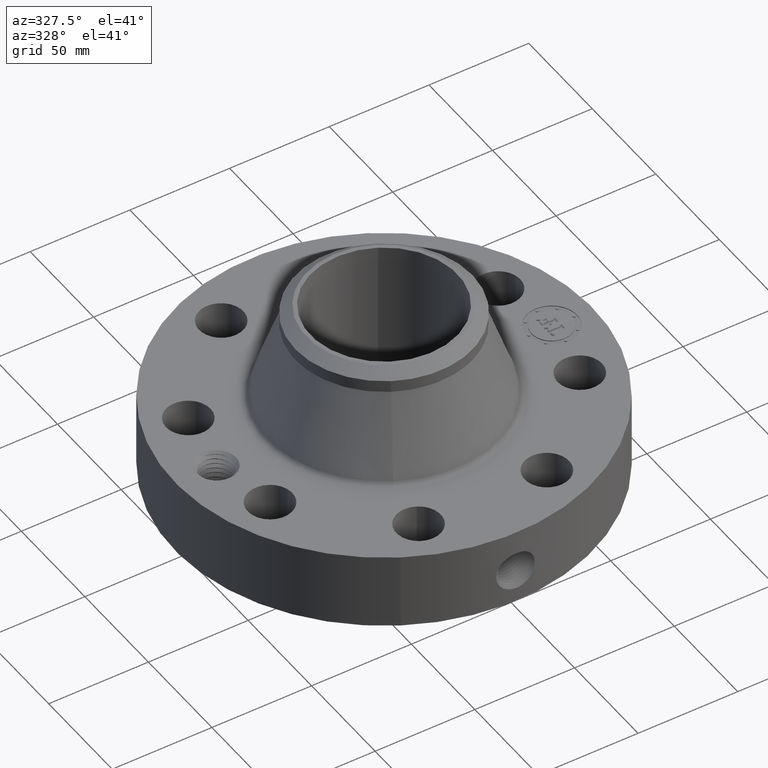
[diagram: clean part render]
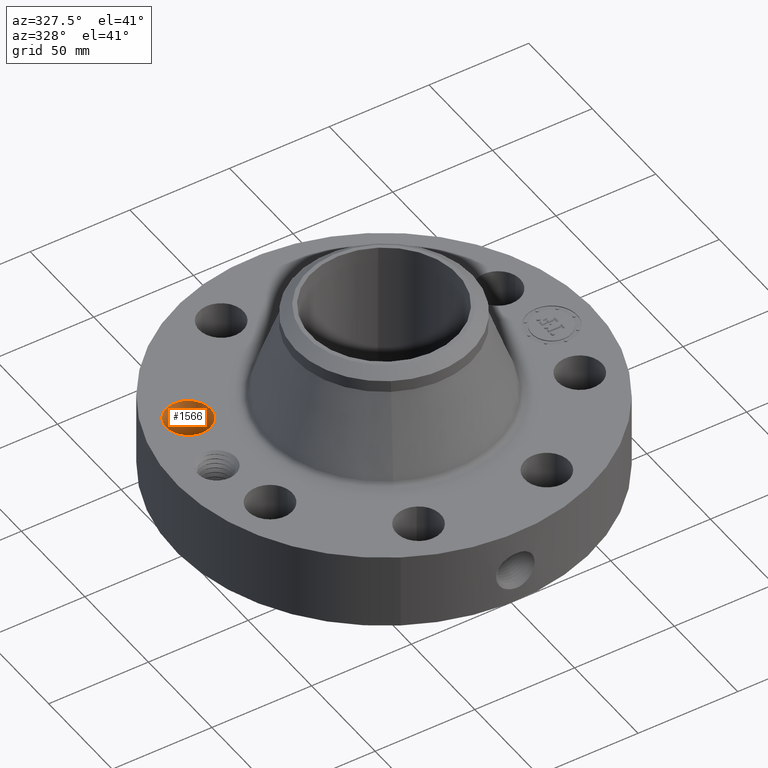
[diagram: same view with one face highlighted and labeled with its STEP entity id]
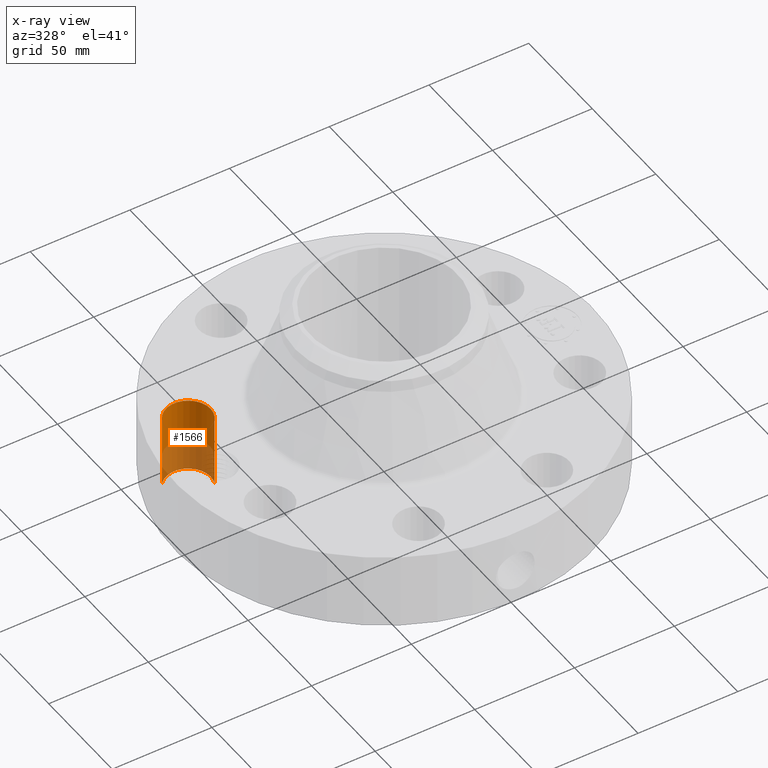
[diagram: x-ray of the same camera — body ghosted, the highlighted face saturated]
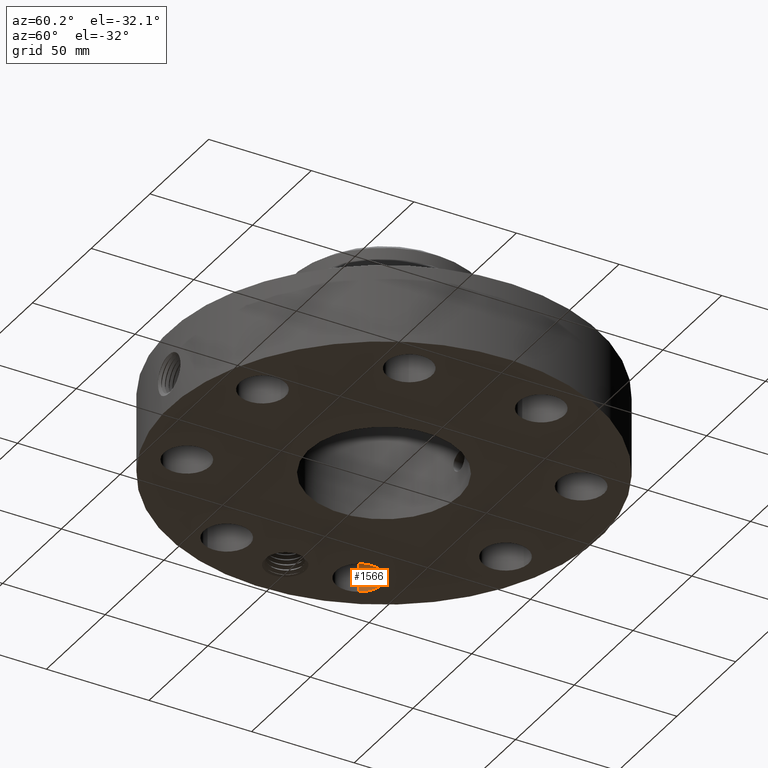
[diagram: same view with one face highlighted and labeled with its STEP entity id]
A machine part, auxiliary view. The second image highlights one B-rep face of the part: STEP entity #1566.
The next image is the same camera in x-ray: the body ghosted, the highlighted face saturated — about 43% of this face is hidden behind the body in this view.
A second angle (auxiliary view) of the same face is appended — the face is thin or edge-on in the first view.
In plain terms, the highlighted cylindrical surface (edge-blend (fillet) strip) has radius 11.176 mm, axis along (-0, 0, -1).
Its self-contained STEP definition (entity closure, byte-faithful):
#323=AXIS2_PLACEMENT_3D('Circle Axis2P3D',#321,#322,$) ;
#631=AXIS2_PLACEMENT_3D('Circle Axis2P3D',#629,#630,$) ;
#1541=AXIS2_PLACEMENT_3D('Cylinder Axis2P3D',#1538,#1539,#1540) ;
#316=CARTESIAN_POINT('Vertex',(-2.67190492539,1.05573492415,0.250000000001)) ;
#318=CARTESIAN_POINT('Vertex',(-3.44417757986,1.47762939812,0.250000000001)) ;
#321=CARTESIAN_POINT('Axis2P3D Location',(-3.05804125262,1.26668216113,0.250000000001)) ;
#629=CARTESIAN_POINT('Axis2P3D Location',(-3.05804125262,1.26668216113,1.75000000001)) ;
#633=CARTESIAN_POINT('Vertex',(-3.44417757986,1.47762939812,1.75000000001)) ;
#635=CARTESIAN_POINT('Vertex',(-2.67190492539,1.05573492415,1.75000000001)) ;
#1538=CARTESIAN_POINT('Axis2P3D Location',(-3.05804125262,1.26668216113,1.74606299213)) ;
#1543=CARTESIAN_POINT('Line Origine',(-2.67190492539,1.05573492415,1.)) ;
#1548=CARTESIAN_POINT('Line Origine',(-3.44417757986,1.47762939812,1.)) ;
#322=DIRECTION('Axis2P3D Direction',(0.,0.,-0.0393700787402)) ;
#630=DIRECTION('Axis2P3D Direction',(0.,0.,-0.0393700787402)) ;
#1539=DIRECTION('Axis2P3D Direction',(-0.,0.,-0.0393700787402)) ;
#1540=DIRECTION('Axis2P3D XDirection',(-0.0345504945626,0.0188750212049,0.)) ;
#1544=DIRECTION('Vector Direction',(0.,0.,-0.0393700787402)) ;
#1549=DIRECTION('Vector Direction',(0.,0.,-0.0393700787402)) ;
#1545=VECTOR('Line Direction',#1544,0.0393700787402) ;
#1550=VECTOR('Line Direction',#1549,0.0393700787402) ;
#1561=ORIENTED_EDGE('',*,*,#1552,.F.) ;
#1562=ORIENTED_EDGE('',*,*,#325,.T.) ;
#1563=ORIENTED_EDGE('',*,*,#1547,.T.) ;
#1564=ORIENTED_EDGE('',*,*,#637,.F.) ;
#1566=ADVANCED_FACE('PartBody',(#1565),#1542,.F.) ;
#324=CIRCLE('generated circle',#323,0.440000000002) ;
#632=CIRCLE('generated circle',#631,0.440000000002) ;
#1542=CYLINDRICAL_SURFACE('generated cylinder',#1541,0.440000000002) ;
#325=EDGE_CURVE('',#319,#317,#324,.T.) ;
#637=EDGE_CURVE('',#634,#636,#632,.T.) ;
#1547=EDGE_CURVE('',#317,#636,#1546,.F.) ;
#1552=EDGE_CURVE('',#319,#634,#1551,.F.) ;
#1560=EDGE_LOOP('',(#1561,#1562,#1563,#1564)) ;
#1565=FACE_OUTER_BOUND('',#1560,.T.) ;
#1546=LINE('Line',#1543,#1545) ;
#1551=LINE('Line',#1548,#1550) ;
#317=VERTEX_POINT('',#316) ;
#319=VERTEX_POINT('',#318) ;
#634=VERTEX_POINT('',#633) ;
#636=VERTEX_POINT('',#635) ;